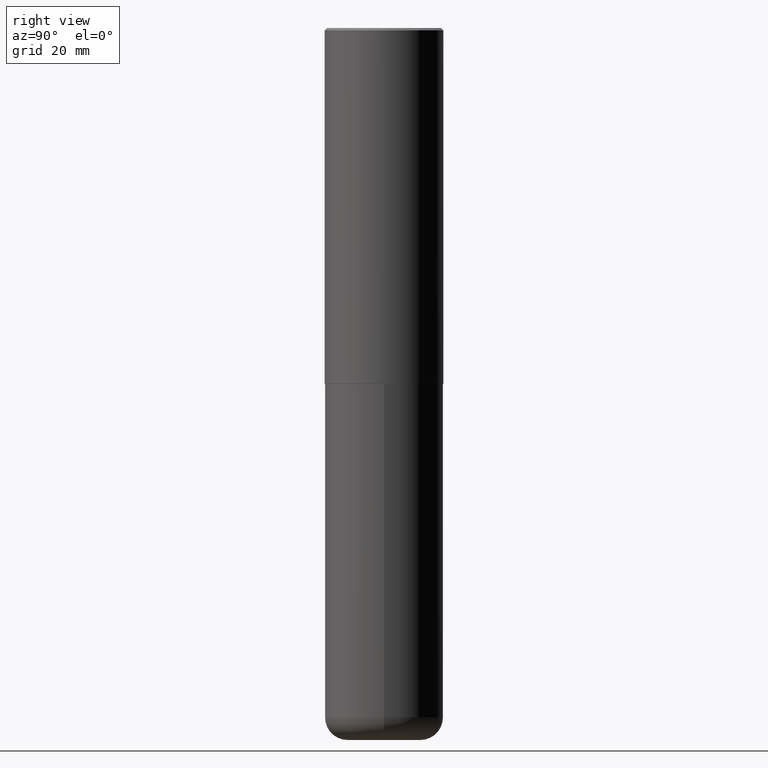
[diagram: clean part render]
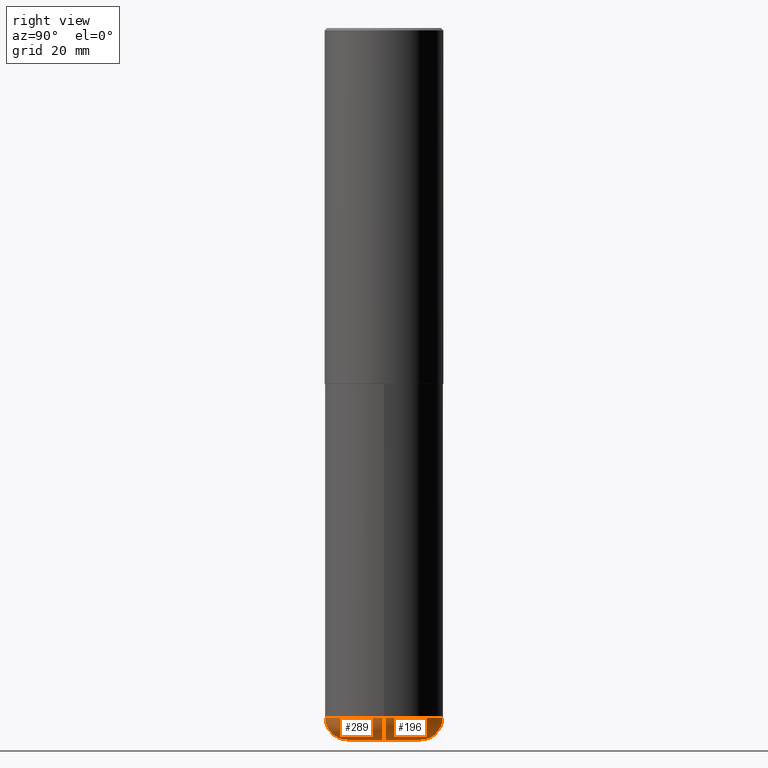
[diagram: same view with one multi-face feature highlighted, each face labeled with its STEP entity id]
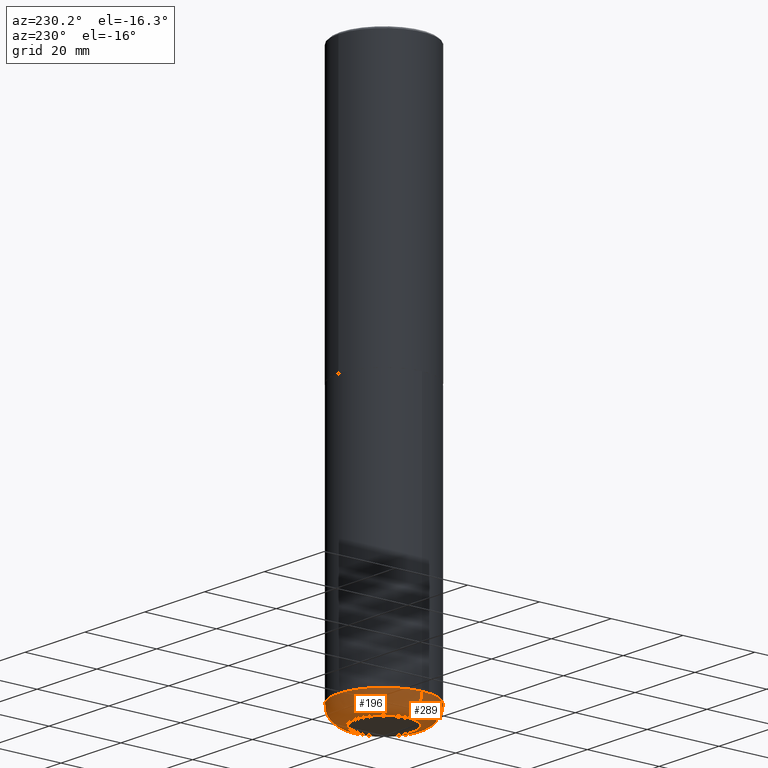
[diagram: same view with one multi-face feature highlighted, each face labeled with its STEP entity id]
A machine part, right view. The highlighted faces form ONE feature: a constant-radius fillet chain: 2 tangent blend faces with common blend radius 4.826 mm. The faces share edges in the B-rep.
A second angle (auxiliary view) of the same feature is appended — it is thin or edge-on in the first view.
Their STEP definitions:
[1] entity #289 (Torus):
#2 = CIRCLE ( 'NONE', #299, 0.1899999999999999467 ) ;
#5 = EDGE_CURVE ( 'NONE', #96, #113, #82, .T. ) ;
#15 = CARTESIAN_POINT ( 'NONE',  ( -0.5000000000000000000, -1.673279289987817518E-14, -5.810000000000000497 ) ) ;
#41 = ORIENTED_EDGE ( 'NONE', *, *, #367, .T. ) ;
#51 = TOROIDAL_SURFACE ( 'NONE', #222, 0.3099999999999999978, 0.1899999999999999467 ) ;
#82 = CIRCLE ( 'NONE', #100, 0.1899999999999999467 ) ;
#83 = CARTESIAN_POINT ( 'NONE',  ( 0.3099999999999999978, -2.245022500876142257E-14, -5.810000000000000497 ) ) ;
#88 = FACE_OUTER_BOUND ( 'NONE', #362, .T. ) ;
#89 = EDGE_CURVE ( 'NONE', #144, #291, #2, .T. ) ;
#93 = DIRECTION ( 'NONE',  ( 1.000000000000000000, -6.982962677686264344E-15, 4.883557194083112340E-29 ) ) ;
#94 = ORIENTED_EDGE ( 'NONE', *, *, #89, .T. ) ;
#96 = VERTEX_POINT ( 'NONE', #237 ) ;
#100 = AXIS2_PLACEMENT_3D ( 'NONE', #371, #140, #408 ) ;
#113 = VERTEX_POINT ( 'NONE', #15 ) ;
#137 = EDGE_CURVE ( 'NONE', #113, #291, #396, .T. ) ;
#140 = DIRECTION ( 'NONE',  ( 7.105427357601001859E-15, 1.000000000000000000, -3.491481338843145583E-15 ) ) ;
#144 = VERTEX_POINT ( 'NONE', #300 ) ;
#208 = DIRECTION ( 'NONE',  ( -2.445468806185136597E-29, 3.491481338843145583E-15, 1.000000000000000000 ) ) ;
#218 = CARTESIAN_POINT ( 'NONE',  ( 1.420817376393564695E-28, -2.028550657867867926E-14, -5.810000000000000497 ) ) ;
#222 = AXIS2_PLACEMENT_3D ( 'NONE', #218, #247, #93 ) ;
#236 = CARTESIAN_POINT ( 'NONE',  ( 1.467281283711081958E-28, -2.094888803305887271E-14, -6.000000000000000888 ) ) ;
#237 = CARTESIAN_POINT ( 'NONE',  ( -0.3099999999999999978, -1.773949922604037162E-14, -6.000000000000000888 ) ) ;
#246 = AXIS2_PLACEMENT_3D ( 'NONE', #273, #208, #372 ) ;
#247 = DIRECTION ( 'NONE',  ( -2.445468806185136597E-29, 3.491481338843145583E-15, 1.000000000000000000 ) ) ;
#253 = ORIENTED_EDGE ( 'NONE', *, *, #137, .F. ) ;
#273 = CARTESIAN_POINT ( 'NONE',  ( 1.420817376393564695E-28, -2.028550657867867926E-14, -5.810000000000000497 ) ) ;
#281 = CARTESIAN_POINT ( 'NONE',  ( 0.5000000000000000000, -2.377698791752181577E-14, -5.810000000000000497 ) ) ;
#289 = ADVANCED_FACE ( 'NONE', ( #88 ), #51, .T. ) ;
#291 = VERTEX_POINT ( 'NONE', #281 ) ;
#299 = AXIS2_PLACEMENT_3D ( 'NONE', #83, #403, #368 ) ;
#300 = CARTESIAN_POINT ( 'NONE',  ( 0.3099999999999999978, -2.311360646314161602E-14, -6.000000000000000888 ) ) ;
#305 = ORIENTED_EDGE ( 'NONE', *, *, #5, .F. ) ;
#331 = DIRECTION ( 'NONE',  ( -2.445468806185136597E-29, 3.491481338843145583E-15, 1.000000000000000000 ) ) ;
#334 = CIRCLE ( 'NONE', #343, 0.3099999999999999978 ) ;
#343 = AXIS2_PLACEMENT_3D ( 'NONE', #236, #331, #366 ) ;
#362 = EDGE_LOOP ( 'NONE', ( #305, #41, #94, #253 ) ) ;
#366 = DIRECTION ( 'NONE',  ( 1.000000000000000000, -6.982962677686263555E-15, 0.000000000000000000 ) ) ;
#367 = EDGE_CURVE ( 'NONE', #96, #144, #334, .T. ) ;
#368 = DIRECTION ( 'NONE',  ( 1.000000000000000000, -6.982962677686263555E-15, 0.000000000000000000 ) ) ;
#371 = CARTESIAN_POINT ( 'NONE',  ( -0.3099999999999999978, -1.808282409782236831E-14, -5.810000000000000497 ) ) ;
#372 = DIRECTION ( 'NONE',  ( 1.000000000000000000, -6.982962677686270655E-15, 0.000000000000000000 ) ) ;
#396 = CIRCLE ( 'NONE', #246, 0.5000000000000000000 ) ;
#403 = DIRECTION ( 'NONE',  ( -6.982962677686266711E-15, -1.000000000000000000, 3.491481338843145583E-15 ) ) ;
#408 = DIRECTION ( 'NONE',  ( -1.000000000000000000, 7.105427357600999492E-15, 0.000000000000000000 ) ) ;
[2] entity #196 (Torus):
#2 = CIRCLE ( 'NONE', #299, 0.1899999999999999467 ) ;
#5 = EDGE_CURVE ( 'NONE', #96, #113, #82, .T. ) ;
#15 = CARTESIAN_POINT ( 'NONE',  ( -0.5000000000000000000, -1.673279289987817518E-14, -5.810000000000000497 ) ) ;
#50 = CIRCLE ( 'NONE', #280, 0.5000000000000000000 ) ;
#52 = DIRECTION ( 'NONE',  ( -2.445468806185136597E-29, 3.491481338843145583E-15, 1.000000000000000000 ) ) ;
#54 = DIRECTION ( 'NONE',  ( 1.000000000000000000, -6.982962677686270655E-15, 0.000000000000000000 ) ) ;
#81 = CARTESIAN_POINT ( 'NONE',  ( 1.467281283711081958E-28, -2.094888803305887271E-14, -6.000000000000000888 ) ) ;
#82 = CIRCLE ( 'NONE', #100, 0.1899999999999999467 ) ;
#83 = CARTESIAN_POINT ( 'NONE',  ( 0.3099999999999999978, -2.245022500876142257E-14, -5.810000000000000497 ) ) ;
#85 = DIRECTION ( 'NONE',  ( -2.445468806185136597E-29, 3.491481338843145583E-15, 1.000000000000000000 ) ) ;
#89 = EDGE_CURVE ( 'NONE', #144, #291, #2, .T. ) ;
#90 = ORIENTED_EDGE ( 'NONE', *, *, #178, .T. ) ;
#96 = VERTEX_POINT ( 'NONE', #237 ) ;
#100 = AXIS2_PLACEMENT_3D ( 'NONE', #371, #140, #408 ) ;
#113 = VERTEX_POINT ( 'NONE', #15 ) ;
#126 = CARTESIAN_POINT ( 'NONE',  ( 1.420817376393564695E-28, -2.028550657867867926E-14, -5.810000000000000497 ) ) ;
#140 = DIRECTION ( 'NONE',  ( 7.105427357601001859E-15, 1.000000000000000000, -3.491481338843145583E-15 ) ) ;
#144 = VERTEX_POINT ( 'NONE', #300 ) ;
#164 = AXIS2_PLACEMENT_3D ( 'NONE', #126, #354, #255 ) ;
#178 = EDGE_CURVE ( 'NONE', #144, #96, #212, .T. ) ;
#179 = DIRECTION ( 'NONE',  ( 1.000000000000000000, -6.982962677686263555E-15, 0.000000000000000000 ) ) ;
#196 = ADVANCED_FACE ( 'NONE', ( #250 ), #239, .T. ) ;
#199 = ORIENTED_EDGE ( 'NONE', *, *, #5, .T. ) ;
#206 = AXIS2_PLACEMENT_3D ( 'NONE', #81, #52, #179 ) ;
#212 = CIRCLE ( 'NONE', #206, 0.3099999999999999978 ) ;
#229 = EDGE_CURVE ( 'NONE', #291, #113, #50, .T. ) ;
#237 = CARTESIAN_POINT ( 'NONE',  ( -0.3099999999999999978, -1.773949922604037162E-14, -6.000000000000000888 ) ) ;
#239 = TOROIDAL_SURFACE ( 'NONE', #164, 0.3099999999999999978, 0.1899999999999999467 ) ;
#250 = FACE_OUTER_BOUND ( 'NONE', #387, .T. ) ;
#255 = DIRECTION ( 'NONE',  ( 1.000000000000000000, -6.982962677686264344E-15, 4.883557194083112340E-29 ) ) ;
#280 = AXIS2_PLACEMENT_3D ( 'NONE', #380, #85, #54 ) ;
#281 = CARTESIAN_POINT ( 'NONE',  ( 0.5000000000000000000, -2.377698791752181577E-14, -5.810000000000000497 ) ) ;
#291 = VERTEX_POINT ( 'NONE', #281 ) ;
#297 = ORIENTED_EDGE ( 'NONE', *, *, #89, .F. ) ;
#299 = AXIS2_PLACEMENT_3D ( 'NONE', #83, #403, #368 ) ;
#300 = CARTESIAN_POINT ( 'NONE',  ( 0.3099999999999999978, -2.311360646314161602E-14, -6.000000000000000888 ) ) ;
#354 = DIRECTION ( 'NONE',  ( -2.445468806185136597E-29, 3.491481338843145583E-15, 1.000000000000000000 ) ) ;
#368 = DIRECTION ( 'NONE',  ( 1.000000000000000000, -6.982962677686263555E-15, 0.000000000000000000 ) ) ;
#371 = CARTESIAN_POINT ( 'NONE',  ( -0.3099999999999999978, -1.808282409782236831E-14, -5.810000000000000497 ) ) ;
#380 = CARTESIAN_POINT ( 'NONE',  ( 1.420817376393564695E-28, -2.028550657867867926E-14, -5.810000000000000497 ) ) ;
#387 = EDGE_LOOP ( 'NONE', ( #90, #199, #397, #297 ) ) ;
#397 = ORIENTED_EDGE ( 'NONE', *, *, #229, .F. ) ;
#403 = DIRECTION ( 'NONE',  ( -6.982962677686266711E-15, -1.000000000000000000, 3.491481338843145583E-15 ) ) ;
#408 = DIRECTION ( 'NONE',  ( -1.000000000000000000, 7.105427357600999492E-15, 0.000000000000000000 ) ) ;